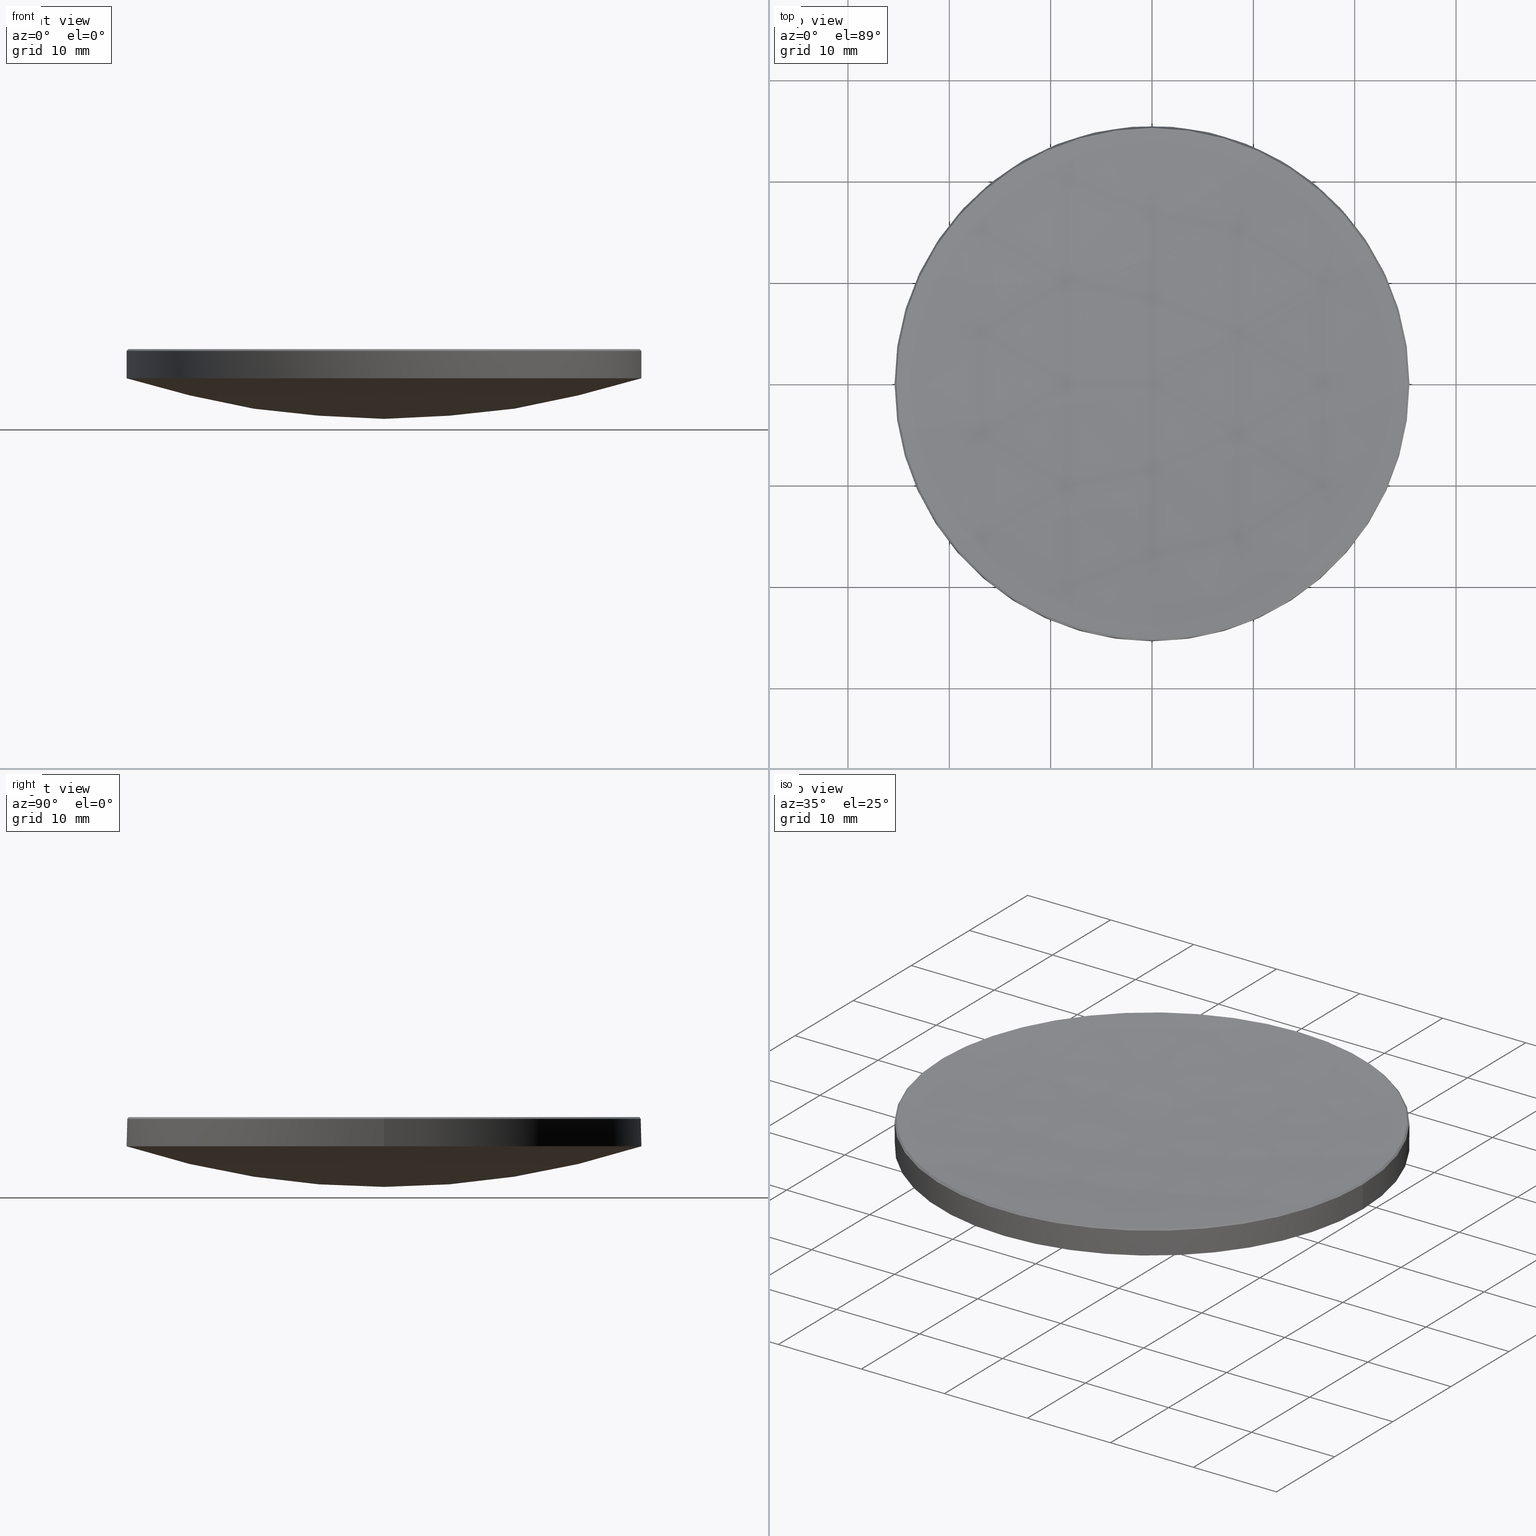
[diagram: canonical four-view strip — front | top / right | iso, engineering-drawing reading convention]
A machine part, canonical four-view strip (front | top / right | iso — engineering-drawing reading convention). The complete STEP part file that produces these views, byte-faithful:
ISO-10303-21;
HEADER;
FILE_DESCRIPTION (( 'STEP AP214' ),
    '1' );
FILE_NAME ('GLM1-050B-250-SWIR.STEP',
    '2024-08-09T02:34:52',
    ( 'Windows User' ),
    ( 'P R C' ),
    'SwSTEP 2.0',
    'SolidWorks 2022',
    '' );
FILE_SCHEMA (( 'AUTOMOTIVE_DESIGN' ));
ENDSEC;

DATA;
#1 = AXIS2_PLACEMENT_3D ( 'NONE', #103, #34, #76 ) ;
#2 = ORIENTED_EDGE ( 'NONE', *, *, #82, .F. ) ;
#3 = ORIENTED_EDGE ( 'NONE', *, *, #25, .T. ) ;
#4 = AXIS2_PLACEMENT_3D ( 'NONE', #185, #142, #99 ) ;
#5 = ORIENTED_EDGE ( 'NONE', *, *, #130, .F. ) ;
#6 = STYLED_ITEM ( 'NONE', ( #147 ), #159 ) ;
#7 = VERTEX_POINT ( 'NONE', #155 ) ;
#8 = DIRECTION ( 'NONE',  ( -0.000000000000000000, -0.000000000000000000, 1.000000000000000000 ) ) ;
#9 = EDGE_CURVE ( 'NONE', #7, #265, #248, .T. ) ;
#10 = CARTESIAN_POINT ( 'NONE',  ( 0.000000000000000000, 0.000000000000000000, 13.00000000000000000 ) ) ;
#11 = AXIS2_PLACEMENT_3D ( 'NONE', #251, #253, #115 ) ;
#12 = DIRECTION ( 'NONE',  ( -0.000000000000000000, -0.000000000000000000, 1.000000000000000000 ) ) ;
#13 = FACE_OUTER_BOUND ( 'NONE', #244, .T. ) ;
#14 = EDGE_CURVE ( 'NONE', #178, #265, #91, .T. ) ;
#15 = FILL_AREA_STYLE_COLOUR ( '', #106 ) ;
#16 = DIRECTION ( 'NONE',  ( 1.000000000000000000, 0.000000000000000000, 0.000000000000000000 ) ) ;
#17 =( NAMED_UNIT ( * ) SI_UNIT ( $, .STERADIAN. ) SOLID_ANGLE_UNIT ( ) );
#18 = DIRECTION ( 'NONE',  ( -1.000000000000000000, 0.000000000000000000, 0.000000000000000000 ) ) ;
#19 = VECTOR ( 'NONE', #121, 1000.000000000000000 ) ;
#20 = DIRECTION ( 'NONE',  ( 1.000000000000000000, -0.000000000000000000, 0.000000000000000000 ) ) ;
#21 = DIRECTION ( 'NONE',  ( -0.000000000000000000, -0.000000000000000000, 1.000000000000000000 ) ) ;
#22 = AXIS2_PLACEMENT_3D ( 'NONE', #100, #116, #59 ) ;
#23 = UNCERTAINTY_MEASURE_WITH_UNIT (LENGTH_MEASURE( 1.000000000000000082E-05 ), #169, 'distance_accuracy_value', 'NONE');
#24 = AXIS2_PLACEMENT_3D ( 'NONE', #56, #149, #40 ) ;
#25 = EDGE_CURVE ( 'NONE', #70, #27, #192, .T. ) ;
#26 = ORIENTED_EDGE ( 'NONE', *, *, #101, .T. ) ;
#27 = VERTEX_POINT ( 'NONE', #74 ) ;
#28 = ORIENTED_EDGE ( 'NONE', *, *, #25, .F. ) ;
#29 = VERTEX_POINT ( 'NONE', #209 ) ;
#30 = DIRECTION ( 'NONE',  ( 0.000000000000000000, 0.000000000000000000, -1.000000000000000000 ) ) ;
#31 = DIRECTION ( 'NONE',  ( 1.000000000000000000, 0.000000000000000000, 0.000000000000000000 ) ) ;
#32 = ADVANCED_FACE ( 'NONE', ( #33 ), #52, .T. ) ;
#33 = FACE_OUTER_BOUND ( 'NONE', #247, .T. ) ;
#34 = DIRECTION ( 'NONE',  ( 0.000000000000000000, 0.000000000000000000, 1.000000000000000000 ) ) ;
#35 = CARTESIAN_POINT ( 'NONE',  ( 0.000000000000000000, 0.000000000000000000, 15.69999999999996376 ) ) ;
#36 = DIRECTION ( 'NONE',  ( 1.000000000000000000, 0.000000000000000000, 0.000000000000000000 ) ) ;
#37 = EDGE_CURVE ( 'NONE', #29, #27, #135, .T. ) ;
#38 = CARTESIAN_POINT ( 'NONE',  ( 0.000000000000000000, 0.000000000000000000, 13.00000000000000000 ) ) ;
#39 = DIRECTION ( 'NONE',  ( 1.000000000000000000, 0.000000000000000000, 0.000000000000000000 ) ) ;
#40 = DIRECTION ( 'NONE',  ( 1.000000000000000000, 0.000000000000000000, 0.000000000000000000 ) ) ;
#41 = CARTESIAN_POINT ( 'NONE',  ( 0.000000000000000000, 0.000000000000000000, 239.1295878686335641 ) ) ;
#42 = UNCERTAINTY_MEASURE_WITH_UNIT (LENGTH_MEASURE( 1.000000000000000082E-05 ), #98, 'distance_accuracy_value', 'NONE');
#43 = FACE_OUTER_BOUND ( 'NONE', #152, .T. ) ;
#44 = AXIS2_PLACEMENT_3D ( 'NONE', #226, #30, #75 ) ;
#45 = ORIENTED_EDGE ( 'NONE', *, *, #241, .F. ) ;
#46 = VECTOR ( 'NONE', #63, 1000.000000000000000 ) ;
#47 = ORIENTED_EDGE ( 'NONE', *, *, #183, .T. ) ;
#48 = APPLICATION_CONTEXT ( 'automotive_design' ) ;
#49 = CARTESIAN_POINT ( 'NONE',  ( -25.22036627463847580, 0.000000000000000000, 15.87963372536152562 ) ) ;
#50 = AXIS2_PLACEMENT_3D ( 'NONE', #10, #12, #31 ) ;
#51 = EDGE_CURVE ( 'NONE', #270, #88, #197, .T. ) ;
#52 = SPHERICAL_SURFACE ( 'NONE', #179, 82.54000000000000625 ) ;
#53 = CARTESIAN_POINT ( 'NONE',  ( -25.39999999999999503, 0.000000000000000000, 13.00000000000000000 ) ) ;
#54 = CARTESIAN_POINT ( 'NONE',  ( -3.088604083155972347E-15, -25.22036627463835501, 15.87963372536149720 ) ) ;
#55 = CARTESIAN_POINT ( 'NONE',  ( 0.000000000000000000, 0.000000000000000000, 239.1295878686335641 ) ) ;
#56 = CARTESIAN_POINT ( 'NONE',  ( 0.000000000000000000, 0.000000000000000000, 15.87963372536149720 ) ) ;
#57 = PRESENTATION_STYLE_ASSIGNMENT (( #215 ) ) ;
#58 = CIRCLE ( 'NONE', #171, 25.22036627463847935 ) ;
#59 = DIRECTION ( 'NONE',  ( 1.000000000000000000, 0.000000000000000000, 0.000000000000000000 ) ) ;
#60 = FILL_AREA_STYLE ('',( #250 ) ) ;
#61 = CIRCLE ( 'NONE', #93, 82.54000000000000625 ) ;
#62 = FACE_OUTER_BOUND ( 'NONE', #108, .T. ) ;
#63 = DIRECTION ( 'NONE',  ( -0.000000000000000000, -0.000000000000000000, -1.000000000000000000 ) ) ;
#64 = EDGE_CURVE ( 'NONE', #221, #270, #87, .T. ) ;
#65 = DIRECTION ( 'NONE',  ( -1.000000000000000000, 0.000000000000000000, 0.000000000000000000 ) ) ;
#66 = ADVANCED_FACE ( 'NONE', ( #191 ), #97, .T. ) ;
#67 = PRESENTATION_LAYER_ASSIGNMENT (  '', '', ( #6 ) ) ;
#68 = ORIENTED_EDGE ( 'NONE', *, *, #218, .F. ) ;
#69 = VERTEX_POINT ( 'NONE', #54 ) ;
#70 = VERTEX_POINT ( 'NONE', #229 ) ;
#71 = ORIENTED_EDGE ( 'NONE', *, *, #245, .T. ) ;
#72 = AXIS2_PLACEMENT_3D ( 'NONE', #55, #232, #186 ) ;
#73 = ORIENTED_EDGE ( 'NONE', *, *, #245, .F. ) ;
#74 = CARTESIAN_POINT ( 'NONE',  ( 0.000000000000000000, 25.22036627463835501, 15.87963372536149720 ) ) ;
#75 = DIRECTION ( 'NONE',  ( 1.000000000000000000, 0.000000000000000000, 0.000000000000000000 ) ) ;
#76 = DIRECTION ( 'NONE',  ( 1.000000000000000000, 0.000000000000000000, 0.000000000000000000 ) ) ;
#77 = CARTESIAN_POINT ( 'NONE',  ( 0.000000000000000000, 0.000000000000000000, 20.00000000000000000 ) ) ;
#78 = SURFACE_STYLE_FILL_AREA ( #275 ) ;
#79 =( NAMED_UNIT ( * ) PLANE_ANGLE_UNIT ( ) SI_UNIT ( $, .RADIAN. ) );
#80 = SURFACE_SIDE_STYLE ('',( #236 ) ) ;
#81 =( GEOMETRIC_REPRESENTATION_CONTEXT ( 3 ) GLOBAL_UNCERTAINTY_ASSIGNED_CONTEXT ( ( #261 ) ) GLOBAL_UNIT_ASSIGNED_CONTEXT ( ( #193, #79, #104 ) ) REPRESENTATION_CONTEXT ( 'NONE', 'WORKASPACE' ) );
#82 = EDGE_CURVE ( 'NONE', #129, #270, #204, .T. ) ;
#83 = SPHERICAL_SURFACE ( 'NONE', #146, 224.6699999999999875 ) ;
#84 = CARTESIAN_POINT ( 'NONE',  ( 0.000000000000000000, 0.000000000000000000, 15.87963372536152562 ) ) ;
#85 = SHAPE_DEFINITION_REPRESENTATION ( #145, #252 ) ;
#86 = CONICAL_SURFACE ( 'NONE', #243, 25.22036627463847580, 0.7853981633973421417 ) ;
#87 = CIRCLE ( 'NONE', #4, 82.54000000000000625 ) ;
#88 = VERTEX_POINT ( 'NONE', #96 ) ;
#89 = ORIENTED_EDGE ( 'NONE', *, *, #37, .T. ) ;
#90 = ORIENTED_EDGE ( 'NONE', *, *, #266, .F. ) ;
#91 = CIRCLE ( 'NONE', #44, 25.39999999999999858 ) ;
#92 = EDGE_LOOP ( 'NONE', ( #220, #180, #71, #282, #133 ) ) ;
#93 = AXIS2_PLACEMENT_3D ( 'NONE', #128, #20, #260 ) ;
#94 =( GEOMETRIC_REPRESENTATION_CONTEXT ( 3 ) GLOBAL_UNCERTAINTY_ASSIGNED_CONTEXT ( ( #23 ) ) GLOBAL_UNIT_ASSIGNED_CONTEXT ( ( #169, #228, #17 ) ) REPRESENTATION_CONTEXT ( 'NONE', 'WORKASPACE' ) );
#95 = LINE ( 'NONE', #184, #165 ) ;
#96 = CARTESIAN_POINT ( 'NONE',  ( 25.39999999999999503, 3.110602869834276471E-15, 13.00000000000000000 ) ) ;
#97 = CYLINDRICAL_SURFACE ( 'NONE', #11, 25.39999999999999858 ) ;
#98 =( LENGTH_UNIT ( ) NAMED_UNIT ( * ) SI_UNIT ( .MILLI., .METRE. ) );
#99 = DIRECTION ( 'NONE',  ( -1.224646799147352961E-16, -1.000000000000000000, 0.000000000000000000 ) ) ;
#100 = CARTESIAN_POINT ( 'NONE',  ( 0.000000000000000000, 0.000000000000000000, 15.87963372536149720 ) ) ;
#101 = EDGE_CURVE ( 'NONE', #27, #7, #281, .T. ) ;
#102 = DIRECTION ( 'NONE',  ( 0.000000000000000000, 0.000000000000000000, -1.000000000000000000 ) ) ;
#103 = CARTESIAN_POINT ( 'NONE',  ( 0.000000000000000000, 0.000000000000000000, 0.000000000000000000 ) ) ;
#104 =( NAMED_UNIT ( * ) SI_UNIT ( $, .STERADIAN. ) SOLID_ANGLE_UNIT ( ) );
#105 = EDGE_CURVE ( 'NONE', #70, #178, #95, .T. ) ;
#106 = COLOUR_RGB ( '',1.000000000000000000, 1.000000000000000000, 1.000000000000000000 ) ;
#107 = ORIENTED_EDGE ( 'NONE', *, *, #257, .F. ) ;
#108 = EDGE_LOOP ( 'NONE', ( #205, #200, #109, #3 ) ) ;
#109 = ORIENTED_EDGE ( 'NONE', *, *, #164, .T. ) ;
#110 = EDGE_CURVE ( 'NONE', #7, #69, #58, .T. ) ;
#111 = ORIENTED_EDGE ( 'NONE', *, *, #51, .T. ) ;
#112 = CIRCLE ( 'NONE', #277, 25.39999999999999858 ) ;
#113 = ORIENTED_EDGE ( 'NONE', *, *, #51, .F. ) ;
#114 = CIRCLE ( 'NONE', #278, 25.39999999999999503 ) ;
#115 = DIRECTION ( 'NONE',  ( -1.000000000000000000, 0.000000000000000000, 0.000000000000000000 ) ) ;
#116 = DIRECTION ( 'NONE',  ( -0.000000000000000000, -0.000000000000000000, 1.000000000000000000 ) ) ;
#117 = DIRECTION ( 'NONE',  ( -1.000000000000000000, 0.000000000000000000, 0.000000000000000000 ) ) ;
#118 = CARTESIAN_POINT ( 'NONE',  ( 0.000000000000000000, 0.000000000000000000, 239.1295878686335641 ) ) ;
#119 = CARTESIAN_POINT ( 'NONE',  ( 0.000000000000000000, 25.39999999999999147, 12.99999999999999822 ) ) ;
#120 = DIRECTION ( 'NONE',  ( -0.000000000000000000, -0.000000000000000000, -1.000000000000000000 ) ) ;
#121 = DIRECTION ( 'NONE',  ( -0.000000000000000000, -0.000000000000000000, -1.000000000000000000 ) ) ;
#122 = MECHANICAL_DESIGN_GEOMETRIC_PRESENTATION_REPRESENTATION (  '', ( #201 ), #94 ) ;
#123 = FACE_OUTER_BOUND ( 'NONE', #151, .T. ) ;
#124 = DIRECTION ( 'NONE',  ( 0.000000000000000000, 1.000000000000000000, 0.000000000000000000 ) ) ;
#125 = AXIS2_PLACEMENT_3D ( 'NONE', #168, #212, #158 ) ;
#126 = DIRECTION ( 'NONE',  ( -1.000000000000000000, 1.224646799147353207E-16, 0.000000000000000000 ) ) ;
#127 =( GEOMETRIC_REPRESENTATION_CONTEXT ( 3 ) GLOBAL_UNCERTAINTY_ASSIGNED_CONTEXT ( ( #42 ) ) GLOBAL_UNIT_ASSIGNED_CONTEXT ( ( #98, #230, #195 ) ) REPRESENTATION_CONTEXT ( 'NONE', 'WORKASPACE' ) );
#128 = CARTESIAN_POINT ( 'NONE',  ( 0.000000000000000000, 0.000000000000000000, 91.53465222435252713 ) ) ;
#129 = VERTEX_POINT ( 'NONE', #53 ) ;
#130 = EDGE_CURVE ( 'NONE', #265, #178, #112, .T. ) ;
#131 = ORIENTED_EDGE ( 'NONE', *, *, #14, .T. ) ;
#132 = ORIENTED_EDGE ( 'NONE', *, *, #64, .F. ) ;
#133 = ORIENTED_EDGE ( 'NONE', *, *, #183, .F. ) ;
#134 = ORIENTED_EDGE ( 'NONE', *, *, #241, .T. ) ;
#135 = CIRCLE ( 'NONE', #213, 224.6699999999999875 ) ;
#136 = DIRECTION ( 'NONE',  ( -1.000000000000000000, 0.000000000000000000, 0.000000000000000000 ) ) ;
#137 = CARTESIAN_POINT ( 'NONE',  ( 0.000000000000000000, 0.000000000000000000, 91.53465222435252713 ) ) ;
#138 = AXIS2_PLACEMENT_3D ( 'NONE', #273, #117, #124 ) ;
#139 = DIRECTION ( 'NONE',  ( 1.000000000000000000, 0.000000000000000000, 0.000000000000000000 ) ) ;
#140 = PRODUCT_CONTEXT ( 'NONE', #48, 'mechanical' ) ;
#141 = CLOSED_SHELL ( 'NONE', ( #188, #276, #263, #66, #150, #32, #207, #196 ) ) ;
#142 = DIRECTION ( 'NONE',  ( -1.000000000000000000, 1.224646799147353207E-16, 0.000000000000000000 ) ) ;
#143 = CARTESIAN_POINT ( 'NONE',  ( -25.39999999999999858, 0.000000000000000000, 15.69999999999996376 ) ) ;
#144 = PRODUCT_RELATED_PRODUCT_CATEGORY ( 'part', '', ( #211 ) ) ;
#145 = PRODUCT_DEFINITION_SHAPE ( 'NONE', 'NONE',  #198 ) ;
#146 = AXIS2_PLACEMENT_3D ( 'NONE', #148, #65, #237 ) ;
#147 = PRESENTATION_STYLE_ASSIGNMENT (( #227 ) ) ;
#148 = CARTESIAN_POINT ( 'NONE',  ( 0.000000000000000000, 0.000000000000000000, 239.1295878686335641 ) ) ;
#149 = DIRECTION ( 'NONE',  ( -0.000000000000000000, -0.000000000000000000, 1.000000000000000000 ) ) ;
#150 = ADVANCED_FACE ( 'NONE', ( #189 ), #274, .T. ) ;
#151 = EDGE_LOOP ( 'NONE', ( #28, #223, #5, #154, #177 ) ) ;
#152 = EDGE_LOOP ( 'NONE', ( #202, #242, #175, #240, #203 ) ) ;
#153 = VECTOR ( 'NONE', #264, 1000.000000000000000 ) ;
#154 = ORIENTED_EDGE ( 'NONE', *, *, #9, .F. ) ;
#155 = CARTESIAN_POINT ( 'NONE',  ( -25.22036627463847935, 0.000000000000000000, 15.87963372536149720 ) ) ;
#156 = EDGE_LOOP ( 'NONE', ( #68, #89, #26, #182 ) ) ;
#157 = AXIS2_PLACEMENT_3D ( 'NONE', #249, #8, #16 ) ;
#158 = DIRECTION ( 'NONE',  ( 1.000000000000000000, 0.000000000000000000, 0.000000000000000000 ) ) ;
#159 = MANIFOLD_SOLID_BREP ( '����1', #141 ) ;
#160 = DIRECTION ( 'NONE',  ( 1.000000000000000000, 0.000000000000000000, 0.000000000000000000 ) ) ;
#161 = APPLICATION_PROTOCOL_DEFINITION ( 'draft international standard', 'automotive_design', 1998, #48 ) ;
#162 = DIRECTION ( 'NONE',  ( -1.000000000000000000, 0.000000000000000000, 0.000000000000000000 ) ) ;
#163 = SPHERICAL_SURFACE ( 'NONE', #72, 224.6699999999999875 ) ;
#164 = EDGE_CURVE ( 'NONE', #69, #70, #268, .T. ) ;
#165 = VECTOR ( 'NONE', #272, 1000.000000000000000 ) ;
#166 = DIRECTION ( 'NONE',  ( 0.000000000000000000, 1.000000000000000000, 0.000000000000000000 ) ) ;
#167 = CARTESIAN_POINT ( 'NONE',  ( 25.39999999999999858, 3.110602869834276865E-15, 20.00000000000000000 ) ) ;
#168 = CARTESIAN_POINT ( 'NONE',  ( 0.000000000000000000, 0.000000000000000000, 13.00000000000000000 ) ) ;
#169 =( LENGTH_UNIT ( ) NAMED_UNIT ( * ) SI_UNIT ( .MILLI., .METRE. ) );
#170 = CARTESIAN_POINT ( 'NONE',  ( 0.000000000000000000, 0.000000000000000000, 15.87963372536152562 ) ) ;
#171 = AXIS2_PLACEMENT_3D ( 'NONE', #231, #254, #139 ) ;
#172 = LINE ( 'NONE', #214, #46 ) ;
#173 = APPLICATION_PROTOCOL_DEFINITION ( 'draft international standard', 'automotive_design', 1998, #225 ) ;
#174 = PRODUCT_DEFINITION_CONTEXT ( 'detailed design', #225, 'design' ) ;
#175 = ORIENTED_EDGE ( 'NONE', *, *, #110, .F. ) ;
#176 = PRODUCT_DEFINITION_FORMATION_WITH_SPECIFIED_SOURCE ( '�κ�', '', #211, .NOT_KNOWN. ) ;
#177 = ORIENTED_EDGE ( 'NONE', *, *, #101, .F. ) ;
#178 = VERTEX_POINT ( 'NONE', #235 ) ;
#179 = AXIS2_PLACEMENT_3D ( 'NONE', #137, #162, #166 ) ;
#180 = ORIENTED_EDGE ( 'NONE', *, *, #266, .T. ) ;
#181 = AXIS2_PLACEMENT_3D ( 'NONE', #41, #126, #216 ) ;
#182 = ORIENTED_EDGE ( 'NONE', *, *, #110, .T. ) ;
#183 = EDGE_CURVE ( 'NONE', #265, #129, #172, .T. ) ;
#184 = CARTESIAN_POINT ( 'NONE',  ( 25.22036627463847580, 3.088604083155986940E-15, 15.87963372536152562 ) ) ;
#185 = CARTESIAN_POINT ( 'NONE',  ( 0.000000000000000000, 0.000000000000000000, 91.53465222435252713 ) ) ;
#186 = DIRECTION ( 'NONE',  ( 0.000000000000000000, 1.000000000000000000, 0.000000000000000000 ) ) ;
#187 = AXIS2_PLACEMENT_3D ( 'NONE', #170, #238, #18 ) ;
#188 = ADVANCED_FACE ( 'NONE', ( #123 ), #239, .T. ) ;
#189 = FACE_OUTER_BOUND ( 'NONE', #199, .T. ) ;
#190 = CARTESIAN_POINT ( 'NONE',  ( -3.110602869834276076E-15, -25.39999999999999147, 12.99999999999999822 ) ) ;
#191 = FACE_OUTER_BOUND ( 'NONE', #92, .T. ) ;
#192 = CIRCLE ( 'NONE', #22, 25.22036627463847935 ) ;
#193 =( LENGTH_UNIT ( ) NAMED_UNIT ( * ) SI_UNIT ( .MILLI., .METRE. ) );
#194 = LINE ( 'NONE', #167, #19 ) ;
#195 =( NAMED_UNIT ( * ) SI_UNIT ( $, .STERADIAN. ) SOLID_ANGLE_UNIT ( ) );
#196 = ADVANCED_FACE ( 'NONE', ( #43 ), #86, .T. ) ;
#197 = CIRCLE ( 'NONE', #50, 25.39999999999999503 ) ;
#198 = PRODUCT_DEFINITION ( 'δ֪', '', #176, #174 ) ;
#199 = EDGE_LOOP ( 'NONE', ( #90, #131, #47, #224, #111 ) ) ;
#200 = ORIENTED_EDGE ( 'NONE', *, *, #218, .T. ) ;
#201 = STYLED_ITEM ( 'NONE', ( #57 ), #252 ) ;
#202 = ORIENTED_EDGE ( 'NONE', *, *, #105, .F. ) ;
#203 = ORIENTED_EDGE ( 'NONE', *, *, #14, .F. ) ;
#204 = CIRCLE ( 'NONE', #125, 25.39999999999999503 ) ;
#205 = ORIENTED_EDGE ( 'NONE', *, *, #37, .F. ) ;
#206 = CIRCLE ( 'NONE', #181, 224.6699999999999875 ) ;
#207 = ADVANCED_FACE ( 'NONE', ( #280 ), #83, .F. ) ;
#208 = DIRECTION ( 'NONE',  ( 0.000000000000000000, 0.000000000000000000, -1.000000000000000000 ) ) ;
#209 = CARTESIAN_POINT ( 'NONE',  ( 0.000000000000000000, 1.375706981822179092E-14, 14.45958786863357837 ) ) ;
#210 = DIRECTION ( 'NONE',  ( 1.000000000000000000, 0.000000000000000000, 0.000000000000000000 ) ) ;
#211 = PRODUCT ( 'GLM1-050B-250-SWIR', 'GLM1-050B-250-SWIR', '', ( #140 ) ) ;
#212 = DIRECTION ( 'NONE',  ( -0.000000000000000000, -0.000000000000000000, 1.000000000000000000 ) ) ;
#213 = AXIS2_PLACEMENT_3D ( 'NONE', #118, #160, #208 ) ;
#214 = CARTESIAN_POINT ( 'NONE',  ( -25.39999999999999858, 0.000000000000000000, 20.00000000000000000 ) ) ;
#215 = SURFACE_STYLE_USAGE ( .BOTH. , #80 ) ;
#216 = DIRECTION ( 'NONE',  ( -1.224646799147353207E-16, -1.000000000000000000, 0.000000000000000000 ) ) ;
#217 = CARTESIAN_POINT ( 'NONE',  ( 0.000000000000000000, 0.000000000000000000, 13.00000000000000000 ) ) ;
#218 = EDGE_CURVE ( 'NONE', #29, #69, #206, .T. ) ;
#219 = CIRCLE ( 'NONE', #256, 25.39999999999999503 ) ;
#220 = ORIENTED_EDGE ( 'NONE', *, *, #130, .T. ) ;
#221 = VERTEX_POINT ( 'NONE', #258 ) ;
#222 = AXIS2_PLACEMENT_3D ( 'NONE', #77, #120, #136 ) ;
#223 = ORIENTED_EDGE ( 'NONE', *, *, #105, .T. ) ;
#224 = ORIENTED_EDGE ( 'NONE', *, *, #82, .T. ) ;
#225 = APPLICATION_CONTEXT ( 'automotive_design' ) ;
#226 = CARTESIAN_POINT ( 'NONE',  ( 0.000000000000000000, 0.000000000000000000, 15.69999999999996376 ) ) ;
#227 = SURFACE_STYLE_USAGE ( .BOTH. , #234 ) ;
#228 =( NAMED_UNIT ( * ) PLANE_ANGLE_UNIT ( ) SI_UNIT ( $, .RADIAN. ) );
#229 = CARTESIAN_POINT ( 'NONE',  ( 25.22036627463847935, 3.099603476495131903E-15, 15.87963372536149720 ) ) ;
#230 =( NAMED_UNIT ( * ) PLANE_ANGLE_UNIT ( ) SI_UNIT ( $, .RADIAN. ) );
#231 = CARTESIAN_POINT ( 'NONE',  ( 0.000000000000000000, 0.000000000000000000, 15.87963372536149720 ) ) ;
#232 = DIRECTION ( 'NONE',  ( -1.000000000000000000, 0.000000000000000000, 0.000000000000000000 ) ) ;
#233 = COLOUR_RGB ( '',1.000000000000000000, 1.000000000000000000, 1.000000000000000000 ) ;
#234 = SURFACE_SIDE_STYLE ('',( #78 ) ) ;
#235 = CARTESIAN_POINT ( 'NONE',  ( 25.39999999999999858, 3.110602869834276865E-15, 15.69999999999996376 ) ) ;
#236 = SURFACE_STYLE_FILL_AREA ( #60 ) ;
#237 = DIRECTION ( 'NONE',  ( 0.000000000000000000, 1.000000000000000000, 0.000000000000000000 ) ) ;
#238 = DIRECTION ( 'NONE',  ( 0.000000000000000000, 0.000000000000000000, -1.000000000000000000 ) ) ;
#239 = CONICAL_SURFACE ( 'NONE', #187, 25.22036627463847580, 0.7853981633973421417 ) ;
#240 = ORIENTED_EDGE ( 'NONE', *, *, #9, .T. ) ;
#241 = EDGE_CURVE ( 'NONE', #221, #269, #61, .T. ) ;
#242 = ORIENTED_EDGE ( 'NONE', *, *, #164, .F. ) ;
#243 = AXIS2_PLACEMENT_3D ( 'NONE', #84, #102, #259 ) ;
#244 = EDGE_LOOP ( 'NONE', ( #45, #267, #2, #107 ) ) ;
#245 = EDGE_CURVE ( 'NONE', #88, #269, #219, .T. ) ;
#246 = PRESENTATION_LAYER_ASSIGNMENT (  '', '', ( #201 ) ) ;
#247 = EDGE_LOOP ( 'NONE', ( #132, #134, #73, #113 ) ) ;
#248 = LINE ( 'NONE', #49, #153 ) ;
#249 = CARTESIAN_POINT ( 'NONE',  ( 0.000000000000000000, 0.000000000000000000, 15.87963372536149720 ) ) ;
#250 = FILL_AREA_STYLE_COLOUR ( '', #233 ) ;
#251 = CARTESIAN_POINT ( 'NONE',  ( 0.000000000000000000, 0.000000000000000000, 20.00000000000000000 ) ) ;
#252 = ADVANCED_BREP_SHAPE_REPRESENTATION ( 'GLM1-050B-250-SWIR', ( #159, #1 ), #127 ) ;
#253 = DIRECTION ( 'NONE',  ( -0.000000000000000000, -0.000000000000000000, -1.000000000000000000 ) ) ;
#254 = DIRECTION ( 'NONE',  ( -0.000000000000000000, -0.000000000000000000, 1.000000000000000000 ) ) ;
#255 = SPHERICAL_SURFACE ( 'NONE', #138, 82.54000000000000625 ) ;
#256 = AXIS2_PLACEMENT_3D ( 'NONE', #217, #21, #36 ) ;
#257 = EDGE_CURVE ( 'NONE', #269, #129, #114, .T. ) ;
#258 = CARTESIAN_POINT ( 'NONE',  ( 0.000000000000000000, 5.054117340081126317E-15, 8.994652224352527980 ) ) ;
#259 = DIRECTION ( 'NONE',  ( -1.000000000000000000, 0.000000000000000000, 0.000000000000000000 ) ) ;
#260 = DIRECTION ( 'NONE',  ( 0.000000000000000000, 0.000000000000000000, -1.000000000000000000 ) ) ;
#261 = UNCERTAINTY_MEASURE_WITH_UNIT (LENGTH_MEASURE( 1.000000000000000082E-05 ), #193, 'distance_accuracy_value', 'NONE');
#262 = MECHANICAL_DESIGN_GEOMETRIC_PRESENTATION_REPRESENTATION (  '', ( #6 ), #81 ) ;
#263 = ADVANCED_FACE ( 'NONE', ( #13 ), #255, .T. ) ;
#264 = DIRECTION ( 'NONE',  ( -0.7071067811864724106, 0.000000000000000000, -0.7071067811866226238 ) ) ;
#265 = VERTEX_POINT ( 'NONE', #143 ) ;
#266 = EDGE_CURVE ( 'NONE', #178, #88, #194, .T. ) ;
#267 = ORIENTED_EDGE ( 'NONE', *, *, #64, .T. ) ;
#268 = CIRCLE ( 'NONE', #24, 25.22036627463847935 ) ;
#269 = VERTEX_POINT ( 'NONE', #119 ) ;
#270 = VERTEX_POINT ( 'NONE', #190 ) ;
#271 = DIRECTION ( 'NONE',  ( 0.000000000000000000, 0.000000000000000000, -1.000000000000000000 ) ) ;
#272 = DIRECTION ( 'NONE',  ( 0.7071067811864724106, 8.659560562354013342E-17, -0.7071067811866226238 ) ) ;
#273 = CARTESIAN_POINT ( 'NONE',  ( 0.000000000000000000, 0.000000000000000000, 91.53465222435252713 ) ) ;
#274 = CYLINDRICAL_SURFACE ( 'NONE', #222, 25.39999999999999858 ) ;
#275 = FILL_AREA_STYLE ('',( #15 ) ) ;
#276 = ADVANCED_FACE ( 'NONE', ( #62 ), #163, .F. ) ;
#277 = AXIS2_PLACEMENT_3D ( 'NONE', #35, #271, #210 ) ;
#278 = AXIS2_PLACEMENT_3D ( 'NONE', #38, #279, #39 ) ;
#279 = DIRECTION ( 'NONE',  ( -0.000000000000000000, -0.000000000000000000, 1.000000000000000000 ) ) ;
#280 = FACE_OUTER_BOUND ( 'NONE', #156, .T. ) ;
#281 = CIRCLE ( 'NONE', #157, 25.22036627463847935 ) ;
#282 = ORIENTED_EDGE ( 'NONE', *, *, #257, .T. ) ;
ENDSEC;
END-ISO-10303-21;
